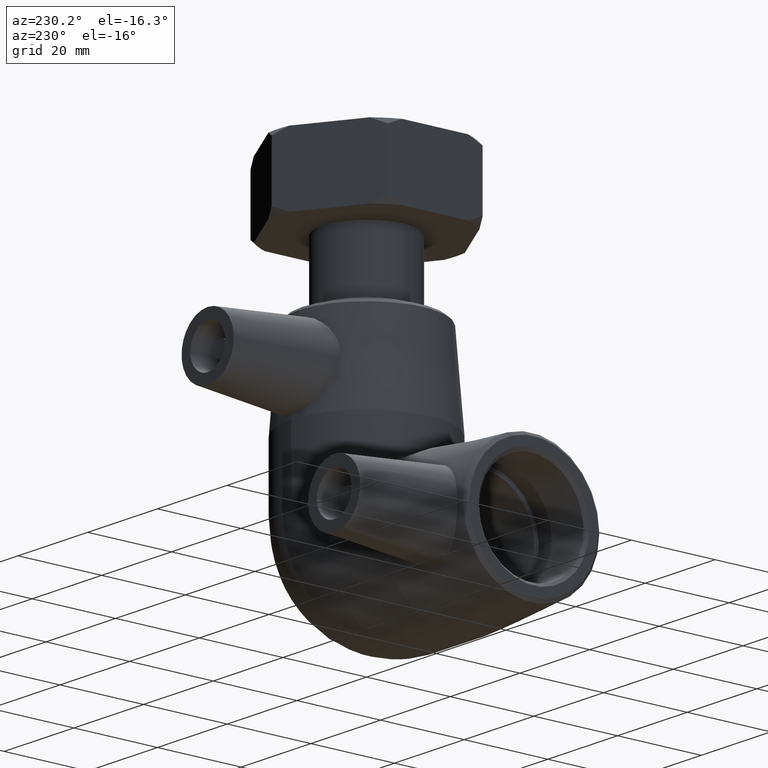
[diagram: clean part render]
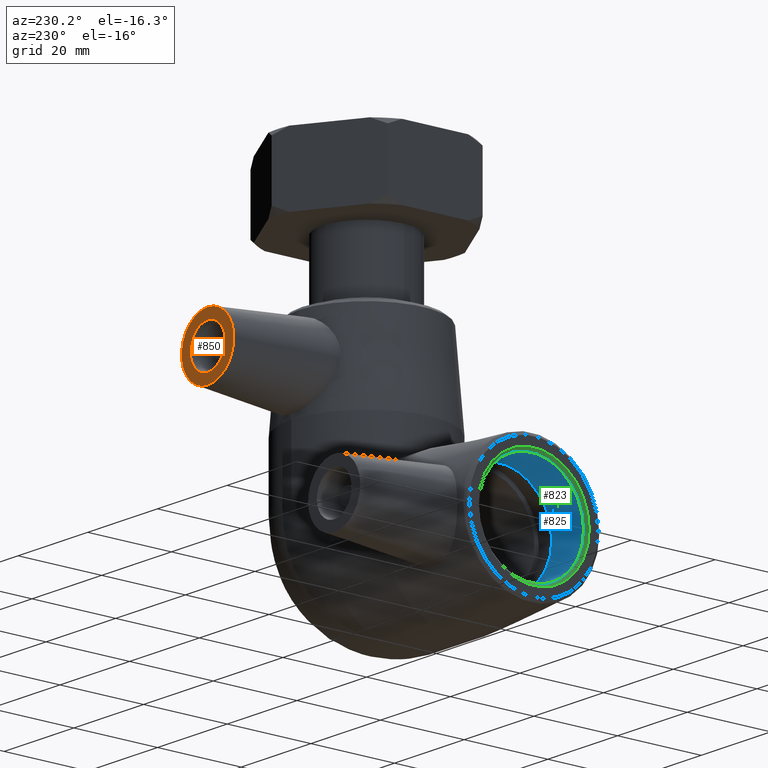
[diagram: same view with three faces highlighted in distinct colors, each labeled with its STEP entity id]
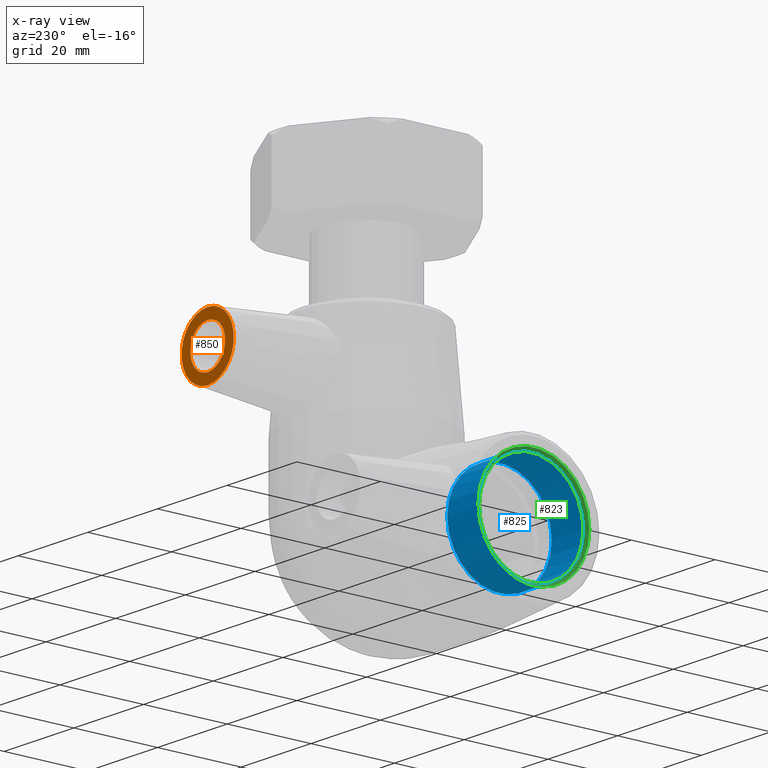
[diagram: x-ray of the same camera — body ghosted, the three highlighted faces saturated]
A machine part, auxiliary view with three faces highlighted in distinct colors.
The next image is the same camera in x-ray (body ghosted, the three faces saturated) — at least one of them is partly hidden behind the body in this view.
Their STEP definitions:

[orange] entity #850 — the highlighted planar face has unit normal (0, 1, 0).
#118=PLANE('',#967);
#157=FACE_BOUND('',#317,.T.);
#219=FACE_OUTER_BOUND('',#316,.T.);
#316=EDGE_LOOP('',(#755));
#317=EDGE_LOOP('',(#756));
#381=CIRCLE('',#961,5.);
#382=CIRCLE('',#966,7.5);
#461=VERTEX_POINT('',#1600);
#462=VERTEX_POINT('',#1606);
#562=EDGE_CURVE('',#461,#461,#381,.T.);
#564=EDGE_CURVE('',#462,#462,#382,.T.);
#755=ORIENTED_EDGE('',*,*,#564,.F.);
#756=ORIENTED_EDGE('',*,*,#562,.T.);
#850=ADVANCED_FACE('',(#219,#157),#118,.T.);
#961=AXIS2_PLACEMENT_3D('',#1601,#1198,#1199);
#966=AXIS2_PLACEMENT_3D('',#1607,#1208,#1209);
#967=AXIS2_PLACEMENT_3D('',#1608,#1210,#1211);
#1198=DIRECTION('center_axis',(0.,-1.,0.));
#1199=DIRECTION('ref_axis',(-6.12323399573677E-17,0.,1.));
#1208=DIRECTION('center_axis',(0.,-1.,0.));
#1209=DIRECTION('ref_axis',(6.12323399573676E-17,0.,-1.));
#1210=DIRECTION('center_axis',(0.,1.,0.));
#1211=DIRECTION('ref_axis',(1.,0.,0.));
#1600=CARTESIAN_POINT('',(-2.52889564023928E-15,38.,31.3));
#1601=CARTESIAN_POINT('Origin',(-2.22273394045245E-15,38.,36.3));
#1606=CARTESIAN_POINT('',(-1.76349139077219E-15,38.,43.8));
#1607=CARTESIAN_POINT('Origin',(-2.22273394045245E-15,38.,36.3));
#1608=CARTESIAN_POINT('Origin',(-2.09937582660521E-15,38.,36.3));

[blue] entity #825 — the highlighted cylindrical surface (bore or boss wall) has radius 12.5 mm, axis along (1, -0, 0).
#86=CYLINDRICAL_SURFACE('',#916,12.5);
#133=FACE_BOUND('',#268,.T.);
#194=FACE_OUTER_BOUND('',#267,.T.);
#267=EDGE_LOOP('',(#697));
#268=EDGE_LOOP('',(#698));
#356=CIRCLE('',#912,12.5);
#359=CIRCLE('',#917,12.5);
#434=VERTEX_POINT('',#1426);
#437=VERTEX_POINT('',#1434);
#532=EDGE_CURVE('',#434,#434,#356,.T.);
#535=EDGE_CURVE('',#437,#437,#359,.T.);
#697=ORIENTED_EDGE('',*,*,#535,.T.);
#698=ORIENTED_EDGE('',*,*,#532,.F.);
#825=ADVANCED_FACE('',(#194,#133),#86,.F.);
#912=AXIS2_PLACEMENT_3D('',#1427,#1099,#1100);
#916=AXIS2_PLACEMENT_3D('',#1433,#1107,#1108);
#917=AXIS2_PLACEMENT_3D('',#1435,#1109,#1110);
#1099=DIRECTION('center_axis',(1.,-2.89120579329468E-18,0.));
#1100=DIRECTION('ref_axis',(0.,-1.,0.));
#1107=DIRECTION('center_axis',(1.,-2.89120579329468E-18,0.));
#1108=DIRECTION('ref_axis',(0.,1.,0.));
#1109=DIRECTION('center_axis',(1.,-2.89120579329468E-18,0.));
#1110=DIRECTION('ref_axis',(0.,0.,-1.));
#1426=CARTESIAN_POINT('',(-47.25,12.5,1.53080849893419E-15));
#1427=CARTESIAN_POINT('Origin',(-47.25,-2.16840434497104E-18,0.));
#1433=CARTESIAN_POINT('Origin',(-43.0666666666667,-1.42632819135871E-17,
0.));
#1434=CARTESIAN_POINT('',(-38.1333333333333,12.5,0.));
#1435=CARTESIAN_POINT('Origin',(-38.1333333333333,-2.85265638271742E-17,
0.));

[green] entity #823 — the highlighted conical surface has half-angle 45 deg.
#131=FACE_BOUND('',#264,.T.);
#192=FACE_OUTER_BOUND('',#263,.T.);
#263=EDGE_LOOP('',(#693));
#264=EDGE_LOOP('',(#694));
#356=CIRCLE('',#912,12.5);
#357=CIRCLE('',#913,13.25);
#434=VERTEX_POINT('',#1426);
#435=VERTEX_POINT('',#1428);
#532=EDGE_CURVE('',#434,#434,#356,.T.);
#533=EDGE_CURVE('',#435,#435,#357,.T.);
#693=ORIENTED_EDGE('',*,*,#532,.T.);
#694=ORIENTED_EDGE('',*,*,#533,.T.);
#789=CONICAL_SURFACE('',#911,12.875,44.9999999999996);
#823=ADVANCED_FACE('',(#192,#131),#789,.F.);
#911=AXIS2_PLACEMENT_3D('',#1425,#1097,#1098);
#912=AXIS2_PLACEMENT_3D('',#1427,#1099,#1100);
#913=AXIS2_PLACEMENT_3D('',#1429,#1101,#1102);
#1097=DIRECTION('center_axis',(-1.,2.89120579329468E-18,0.));
#1098=DIRECTION('ref_axis',(-1.48770783538464E-18,-1.,0.));
#1099=DIRECTION('center_axis',(1.,-2.89120579329468E-18,0.));
#1100=DIRECTION('ref_axis',(0.,-1.,0.));
#1101=DIRECTION('center_axis',(-1.,2.89120579329468E-18,0.));
#1102=DIRECTION('ref_axis',(-2.89120579329468E-18,-1.,0.));
#1425=CARTESIAN_POINT('Origin',(-47.625,-1.08420217248552E-18,0.));
#1426=CARTESIAN_POINT('',(-47.25,12.5,1.53080849893419E-15));
#1427=CARTESIAN_POINT('Origin',(-47.25,-2.16840434497104E-18,0.));
#1428=CARTESIAN_POINT('',(-48.,13.25,-1.62265700887024E-15));
#1429=CARTESIAN_POINT('Origin',(-48.,0.,0.));